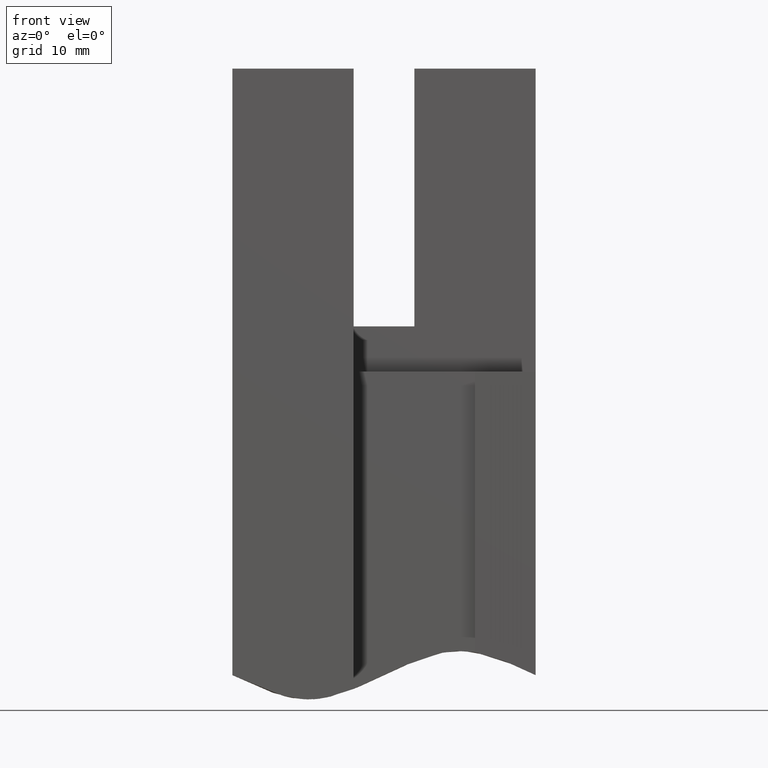
[diagram: clean part render]
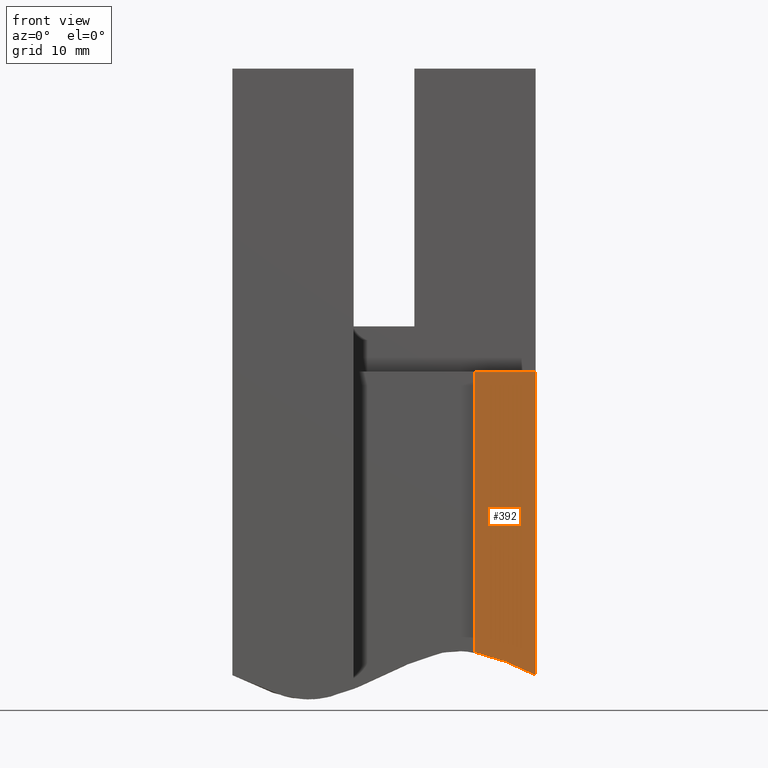
[diagram: same view with one face highlighted and labeled with its STEP entity id]
A machine part, front view. The second image highlights one B-rep face of the part: STEP entity #392.
In plain terms, the highlighted planar face has unit normal (0.0523, 0.9986, 0).
Its self-contained STEP definition (entity closure, byte-faithful):
#108=VECTOR('',#427,1.);
#109=VECTOR('',#428,1.);
#110=VECTOR('',#429,1.);
#147=LINE('',#488,#108);
#148=LINE('',#490,#109);
#149=LINE('',#492,#110);
#186=VERTEX_POINT('',#486);
#187=VERTEX_POINT('',#487);
#188=VERTEX_POINT('',#489);
#189=VERTEX_POINT('',#491);
#215=B_SPLINE_CURVE_WITH_KNOTS('',3,(#482,#483,#484,#485),.UNSPECIFIED.,
 .F.,.U.,(4,4),(-0.690991863041183,0.),.UNSPECIFIED.);
#221=EDGE_CURVE('',#186,#187,#215,.T.);
#222=EDGE_CURVE('',#188,#186,#147,.T.);
#223=EDGE_CURVE('',#189,#188,#148,.T.);
#224=EDGE_CURVE('',#187,#189,#149,.T.);
#266=ORIENTED_EDGE('',*,*,#221,.F.);
#267=ORIENTED_EDGE('',*,*,#222,.F.);
#268=ORIENTED_EDGE('',*,*,#223,.F.);
#269=ORIENTED_EDGE('',*,*,#224,.F.);
#356=EDGE_LOOP('',(#266,#267,#268,#269));
#374=FACE_BOUND('',#356,.T.);
#392=ADVANCED_FACE('',(#374),#614,.F.);
#410=AXIS2_PLACEMENT_3D('',#481,#426,$);
#426=DIRECTION('',(0.052335956242942,0.998629534754574,1.55074763536797E-31));
#427=DIRECTION('',(0.,1.55287579767916E-31,-1.));
#428=DIRECTION('',(0.998629534754574,-0.052335956242942,4.51149641625811E-30));
#429=DIRECTION('',(0.,-1.55287579767916E-31,1.));
#481=CARTESIAN_POINT('',(1.125,0.44444902758962,-1.25));
#482=CARTESIAN_POINT('',(1.24999999999999,0.437898055179241,-2.49999999999998));
#483=CARTESIAN_POINT('',(1.16011397943074,0.442608781905864,-2.45685471012674));
#484=CARTESIAN_POINT('',(1.07022795886149,0.447319508632489,-2.41370942025349));
#485=CARTESIAN_POINT('',(0.980341938292233,0.452030235359113,-2.40269039000978));
#486=CARTESIAN_POINT('',(1.25,0.43789805517924,-2.49999999999998));
#487=CARTESIAN_POINT('',(1.,0.451,-2.40559999999998));
#488=CARTESIAN_POINT('',(1.25,0.43789805517924,-0.625));
#489=CARTESIAN_POINT('',(1.25,0.43789805517924,-1.25));
#490=CARTESIAN_POINT('',(1.1284481072709,0.444268319944822,-1.25));
#491=CARTESIAN_POINT('',(1.,0.451,-1.25));
#492=CARTESIAN_POINT('',(1.,0.451,-3.01556797369296));
#614=PLANE('',#410);